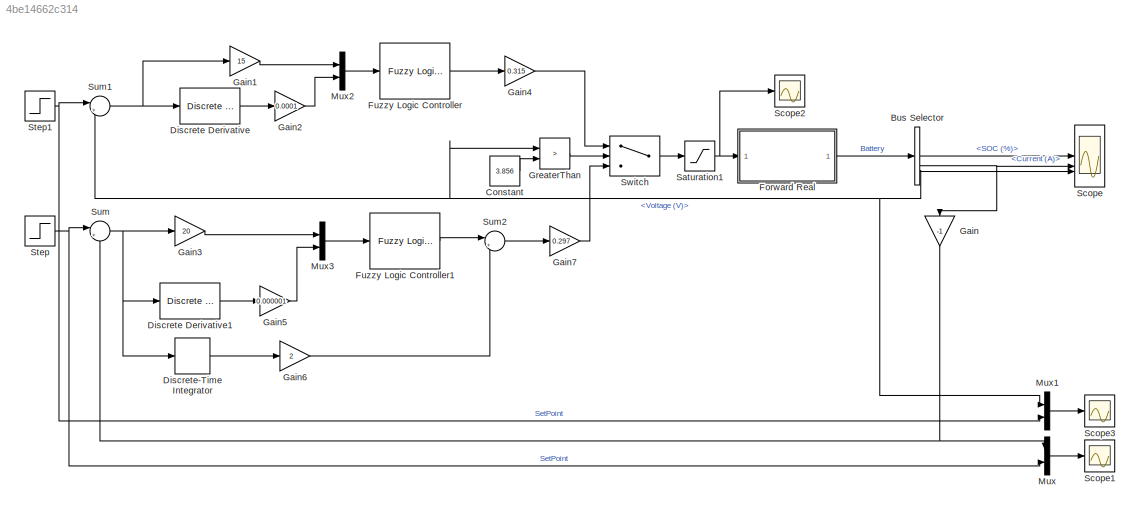
MODEL slx_4be14662c314
KIND model
CONFIG AbsTol = auto
CONFIG EnableMultiTasking = on
CONFIG FixedStep = auto
CONFIG MaxStep = 1e-4
CONFIG MinStep = auto
CONFIG RelTol = 1e-4
CONFIG SampleTimeConstraint = Unconstrained
CONFIG SolverName = ode23tb
CONFIG StartTime = 0.0
CONFIG StopTime = 6
BLOCK [BusSelector] Bus Selector
  OutputSignals = SOC (%),Current (A),Voltage (V)
BLOCK [Constant] Constant
  Value = 3.856
  VectorParams1D = off
BLOCK [Reference] Discrete Derivative  REF=simulink/Discrete/Discrete Derivative
  SourceBlock = simulink/Discrete/Discrete Derivative
  SourceType = Discrete Derivative
BLOCK [Reference] Discrete Derivative1  REF=simulink/Discrete/Discrete Derivative
  SourceBlock = simulink/Discrete/Discrete Derivative
  SourceType = Discrete Derivative
BLOCK [DiscreteIntegrator] Discrete-Time Integrator
  ICPrevOutput = DiscIntNeverNeededParam
  ICPrevScaledInput = DiscIntNeverNeededParam
  InitialConditionSetting = Auto
  SampleTime = -1
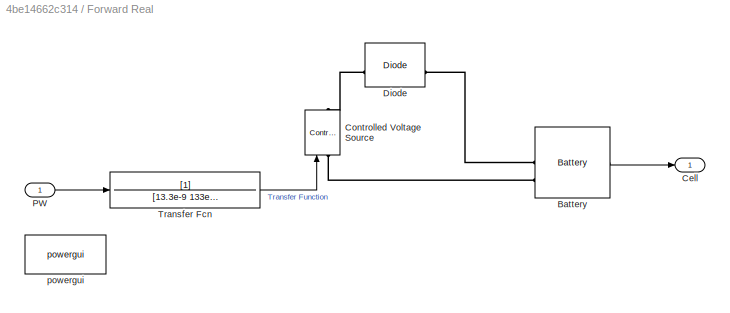
BLOCK [SubSystem] Forward Real
BLOCK [Reference] Forward Real/Battery  REF=spsBatteryLib/Battery
  LibrarySourceBlock = sps_lib/Sources/Battery
  SourceBlock = spsBatteryLib/Battery
  SourceType = Battery
BLOCK [Outport] Forward Real/Cell
BLOCK [Reference] Forward Real/Controlled Voltage Source  REF=spsControlledVoltageSourceLib/Controlled Voltage Source
  LibrarySourceBlock = sps_lib/Sources/Controlled Voltage Source
  SourceBlock = spsControlledVoltageSourceLib/Controlled Voltage Source
  SourceType = Controlled Voltage Source
BLOCK [Reference] Forward Real/Diode  REF=spsDiodeLib/Diode
  LibrarySourceBlock = sps_lib/Power Electronics/Diode
  SourceBlock = spsDiodeLib/Diode
  SourceType = Diode
BLOCK [Inport] Forward Real/PW
BLOCK [TransferFcn] Forward Real/Transfer Fcn
  Denominator = [13.3e-9 133e-6 1]
BLOCK [Reference] Forward Real/powergui  REF=sps_lib/powergui
  LibrarySourceBlock = sps_lib/powergui
  Priority = 1
  SourceBlock = sps_lib/powergui
  SourceType = PSB option menu block
BLOCK [Reference] Fuzzy Logic Controller  REF=fuzblock/Fuzzy Logic   (lib defined in mdl_858b3b3e7478)
Controller
  SourceBlock = fuzblock/Fuzzy Logic \nController
  SourceType = Fuzzy Inference System
BLOCK [Reference] Fuzzy Logic Controller1  REF=fuzblock/Fuzzy Logic   (lib defined in mdl_858b3b3e7478)
Controller
  SourceBlock = fuzblock/Fuzzy Logic \nController
  SourceType = Fuzzy Inference System
BLOCK [Gain] Gain
  Gain = -1
  NameLocation = right
BLOCK [Gain] Gain1
  Gain = 15
BLOCK [Gain] Gain2
  Gain = 0.0001
BLOCK [Gain] Gain3
  Gain = 20
BLOCK [Gain] Gain4
  Gain = 0.315
BLOCK [Gain] Gain5
  Gain = 0.000001
BLOCK [Gain] Gain6
  Gain = 2
BLOCK [Gain] Gain7
  Gain = 0.297
BLOCK [RelationalOperator] GreaterThan
  InputSameDT = off
  Operator = >
  OutDataTypeStr = boolean
  RndMeth = Simplest
  ZeroCross = off
BLOCK [Mux] Mux
  DisplayOption = bar
  Inputs = 2
BLOCK [Mux] Mux1
  DisplayOption = bar
  Inputs = 2
BLOCK [Mux] Mux2
  DisplayOption = bar
  Inputs = 2
BLOCK [Mux] Mux3
  DisplayOption = bar
  Inputs = 2
BLOCK [Saturate] Saturation1
  LowerLimit = 0
  UpperLimit = 24
BLOCK [Scope] Scope
  Floating = off
  NumInputPorts = 3
  ScopeSpecificationString = Simulink.scopes.TimeScopeBlockCfg('CurrentConfiguration', extmgr.ConfigurationSet(extmgr.Configuration('Core','General UI',true,'FigureColor',[1 1 1]),extmgr.Configuration('Core','Source UI',true),extmgr.Configuration('Sources','WiredSimulink',true),extmgr.Configuration('Visuals','Time Domain',true,'SerializedDisplays',{struct('MinYLimReal','99.79528','MaxYLimReal','99.84247','YLabelReal','','MinY...<+3153ch>
BLOCK [Scope] Scope1
  Floating = off
  NumInputPorts = 1
  ScopeSpecificationString = Simulink.scopes.TimeScopeBlockCfg('CurrentConfiguration', extmgr.ConfigurationSet(extmgr.Configuration('Core','General UI',true),extmgr.Configuration('Core','Source UI',true),extmgr.Configuration('Sources','WiredSimulink',true,'DataLoggingVariableName','ScopeData1'),extmgr.Configuration('Visuals','Time Domain',true,'SerializedDisplays',{struct('MinYLimReal','-0.76759','MaxYLimReal','0.5838','YLabe...<+1476ch>
BLOCK [Scope] Scope2
  Floating = off
  NumInputPorts = 1
  ScopeSpecificationString = Simulink.scopes.TimeScopeBlockCfg('CurrentConfiguration', extmgr.ConfigurationSet(extmgr.Configuration('Core','General UI',true),extmgr.Configuration('Core','Source UI',true),extmgr.Configuration('Sources','WiredSimulink',true,'DataLoggingVariableName','ScopeData2'),extmgr.Configuration('Visuals','Time Domain',true,'SerializedDisplays',{struct('MinYLimReal','3.69766','MaxYLimReal','4.07886','YLabe...<+1414ch>
BLOCK [Scope] Scope3
  Floating = off
  NumInputPorts = 1
  ScopeSpecificationString = Simulink.scopes.TimeScopeBlockCfg('CurrentConfiguration', extmgr.ConfigurationSet(extmgr.Configuration('Core','General UI',true),extmgr.Configuration('Core','Source UI',true),extmgr.Configuration('Sources','WiredSimulink',true,'DataLoggingVariableName','ScopeData1'),extmgr.Configuration('Visuals','Time Domain',true,'SerializedDisplays',{struct('MinYLimReal','3.73883','MaxYLimReal','3.88042','YLabe...<+1460ch>
BLOCK [Step] Step
  After = 0.3
  SampleTime = 0
  Time = 0
BLOCK [Step] Step1
  After = 3.856
  SampleTime = 0
  Time = 0
BLOCK [Sum] Sum
  Inputs = |+-
BLOCK [Sum] Sum1
  Inputs = |+-
BLOCK [Sum] Sum2
  Inputs = |++
BLOCK [Switch] Switch
  Criteria = u2 > Threshold
  InputSameDT = off
  SaturateOnIntegerOverflow = off
LINE Bus Selector:1 -> Scope:1
NET Bus Selector:2 -> Gain:1, Scope:2
NET Bus Selector:3 -> GreaterThan:1, Mux1:1, Scope:3, Sum1:2
LINE Constant:1 -> GreaterThan:2
LINE Discrete Derivative1:1 -> Gain5:1
LINE Discrete Derivative:1 -> Gain2:1
LINE Discrete-Time Integrator:1 -> Gain6:1
LINE Forward Real/Battery:1 -> Forward Real/Cell:1
LINE Forward Real/PW:1 -> Forward Real/Transfer Fcn:1
LINE Forward Real/Transfer Fcn:1 -> Forward Real/Controlled Voltage Source:1
LINE Forward Real:1 -> Bus Selector:1
LINE Fuzzy Logic Controller1:1 -> Sum2:1
LINE Fuzzy Logic Controller:1 -> Gain4:1
LINE Gain1:1 -> Mux2:1
LINE Gain2:1 -> Mux2:2
LINE Gain3:1 -> Mux3:1
LINE Gain4:1 -> Switch:1
LINE Gain5:1 -> Mux3:2
LINE Gain6:1 -> Sum2:2
LINE Gain7:1 -> Switch:3
NET Gain:1 -> Mux:1, Sum:2
LINE GreaterThan:1 -> Switch:2
LINE Mux1:1 -> Scope3:1
LINE Mux2:1 -> Fuzzy Logic Controller:1
LINE Mux3:1 -> Fuzzy Logic Controller1:1
LINE Mux:1 -> Scope1:1
NET Saturation1:1 -> Forward Real:1, Scope2:1
NET Step1:1 -> Mux1:2, Sum1:1
NET Step:1 -> Mux:2, Sum:1
NET Sum1:1 -> Discrete Derivative:1, Gain1:1
LINE Sum2:1 -> Gain7:1
NET Sum:1 -> Discrete Derivative1:1, Discrete-Time Integrator:1, Gain3:1
LINE Switch:1 -> Saturation1:1
PLINE Forward Real/Battery:LConn1 -- Forward Real/Diode:RConn1
PLINE Forward Real/Battery:LConn2 -- Forward Real/Controlled Voltage Source:LConn1
PLINE Forward Real/Controlled Voltage Source:RConn1 -- Forward Real/Diode:LConn1
note: NET lines group one-source signal fan-out (src -> all destinations, sorted); 1:1 wires keep LINE
